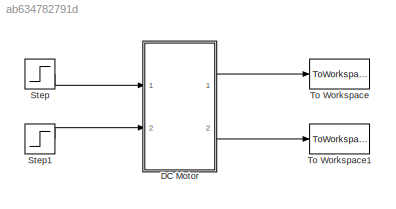
MODEL slx_ab634782791d
KIND model
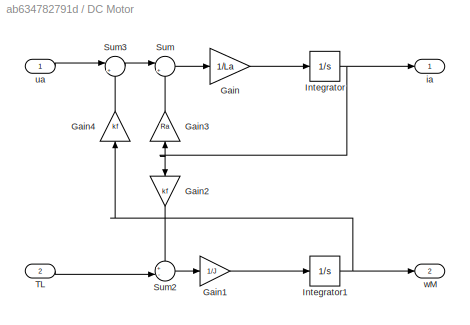
BLOCK [SubSystem] DC Motor
  FunctionWithSeparateData = off
  MaskHideContents = off
  MinAlgLoopOccurrences = off
  Opaque = off
  Ports = [2, 2]
  PropExecContextOutsideSubsystem = off
  RTWSystemCode = Auto
  RequestExecContextInheritance = off
BLOCK [Gain] DC Motor/Gain
  Gain = 1/La
  OutDataTypeStr = Inherit: Inherit via internal rule
  ParamDataTypeStr = Inherit: Inherit via internal rule
  SaturateOnIntegerOverflow = off
BLOCK [Gain] DC Motor/Gain1
  Gain = 1/J
  OutDataTypeStr = Inherit: Inherit via internal rule
  ParamDataTypeStr = Inherit: Inherit via internal rule
  SaturateOnIntegerOverflow = off
BLOCK [Gain] DC Motor/Gain2
  Gain = kf
  OutDataTypeStr = Inherit: Inherit via internal rule
  ParamDataTypeStr = Inherit: Inherit via internal rule
  SaturateOnIntegerOverflow = off
BLOCK [Gain] DC Motor/Gain3
  Gain = Ra
  OutDataTypeStr = Inherit: Inherit via internal rule
  ParamDataTypeStr = Inherit: Inherit via internal rule
  SaturateOnIntegerOverflow = off
BLOCK [Gain] DC Motor/Gain4
  Gain = kf
  OutDataTypeStr = Inherit: Inherit via internal rule
  ParamDataTypeStr = Inherit: Inherit via internal rule
  SaturateOnIntegerOverflow = off
BLOCK [Integrator] DC Motor/Integrator
  Ports = [1, 1]
BLOCK [Integrator] DC Motor/Integrator1
  Ports = [1, 1]
BLOCK [Sum] DC Motor/Sum
  IconShape = round
  InputSameDT = off
  Inputs = |+-
  OutDataTypeStr = Inherit: Inherit via internal rule
  Ports = [2, 1]
  SaturateOnIntegerOverflow = off
BLOCK [Sum] DC Motor/Sum2
  IconShape = round
  InputSameDT = off
  Inputs = +-|
  OutDataTypeStr = Inherit: Inherit via internal rule
  Ports = [2, 1]
  SaturateOnIntegerOverflow = off
BLOCK [Sum] DC Motor/Sum3
  IconShape = round
  InputSameDT = off
  Inputs = |+-
  OutDataTypeStr = Inherit: Inherit via internal rule
  Ports = [2, 1]
  SaturateOnIntegerOverflow = off
BLOCK [Inport] DC Motor/TL
  IconDisplay = Port number
  Port = 2
BLOCK [Outport] DC Motor/ia
  IconDisplay = Port number
BLOCK [Inport] DC Motor/ua
  IconDisplay = Port number
BLOCK [Outport] DC Motor/wM
  IconDisplay = Port number
  Port = 2
BLOCK [Step] Step
  After = 120
  SampleTime = 0
  Time = 0.1
BLOCK [Step] Step1
  After = 7
  SampleTime = 0
  Time = 0.3
BLOCK [ToWorkspace] To Workspace
  MaxDataPoints = inf
  Ports = [1]
  SampleTime = -1
  SaveFormat = Timeseries
  VariableName = ia
BLOCK [ToWorkspace] To Workspace1
  MaxDataPoints = inf
  Ports = [1]
  SampleTime = -1
  SaveFormat = Timeseries
  VariableName = wM
LINE DC Motor/Gain1:1 -> DC Motor/Integrator1:1
LINE DC Motor/Gain2:1 -> DC Motor/Sum2:1
LINE DC Motor/Gain3:1 -> DC Motor/Sum:2
LINE DC Motor/Gain4:1 -> DC Motor/Sum3:2
LINE DC Motor/Gain:1 -> DC Motor/Integrator:1
NET DC Motor/Integrator1:1 -> DC Motor/Gain4:1, DC Motor/wM:1
NET DC Motor/Integrator:1 -> DC Motor/Gain2:1, DC Motor/Gain3:1, DC Motor/ia:1
LINE DC Motor/Sum2:1 -> DC Motor/Gain1:1
LINE DC Motor/Sum3:1 -> DC Motor/Sum:1
LINE DC Motor/Sum:1 -> DC Motor/Gain:1
LINE DC Motor/TL:1 -> DC Motor/Sum2:2
LINE DC Motor/ua:1 -> DC Motor/Sum3:1
LINE DC Motor:1 -> To Workspace:1
LINE DC Motor:2 -> To Workspace1:1
LINE Step1:1 -> DC Motor:2
LINE Step:1 -> DC Motor:1
note: NET lines group one-source signal fan-out (src -> all destinations, sorted); 1:1 wires keep LINE
